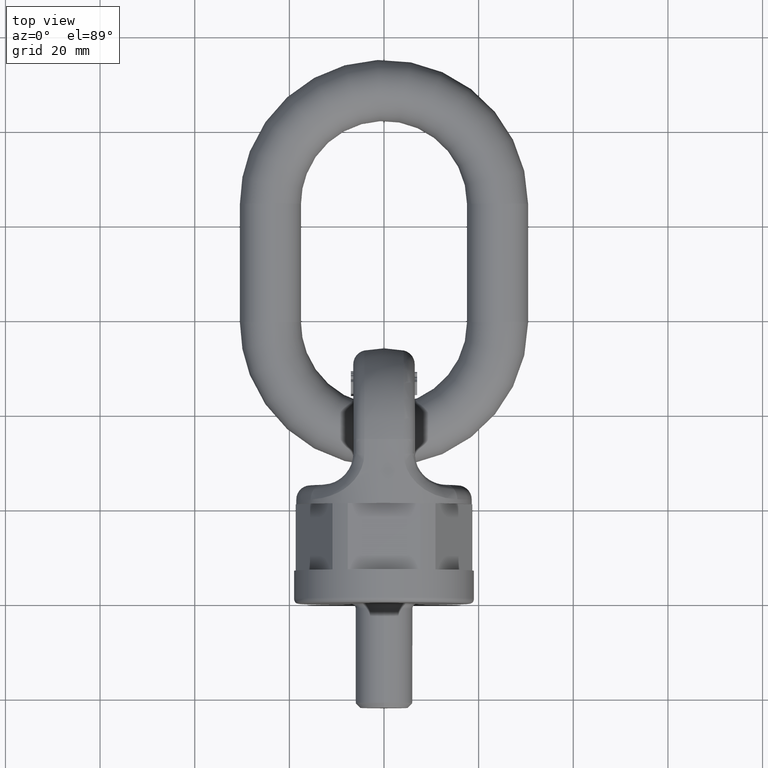
[diagram: clean part render]
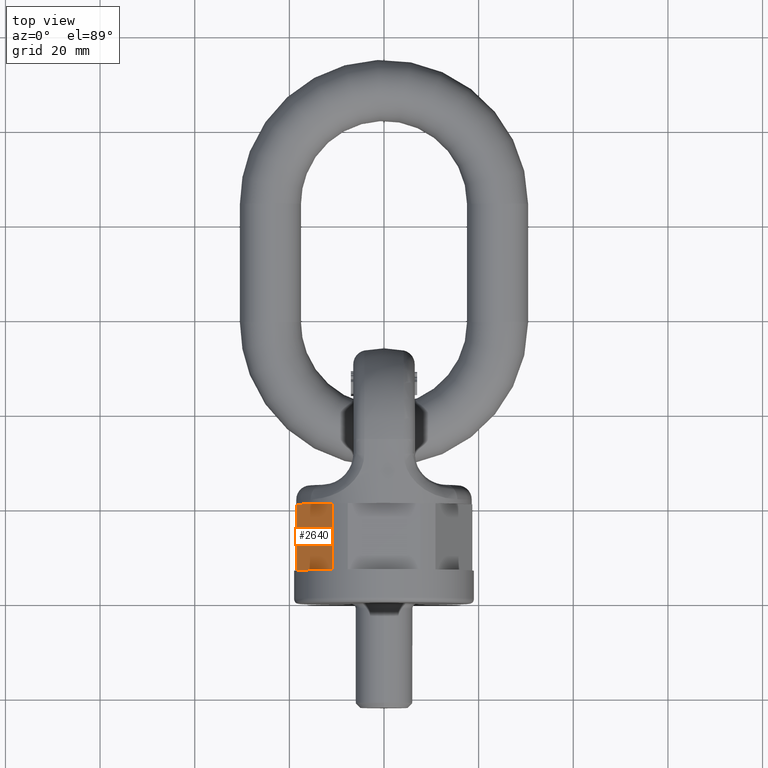
[diagram: same view with one face highlighted and labeled with its STEP entity id]
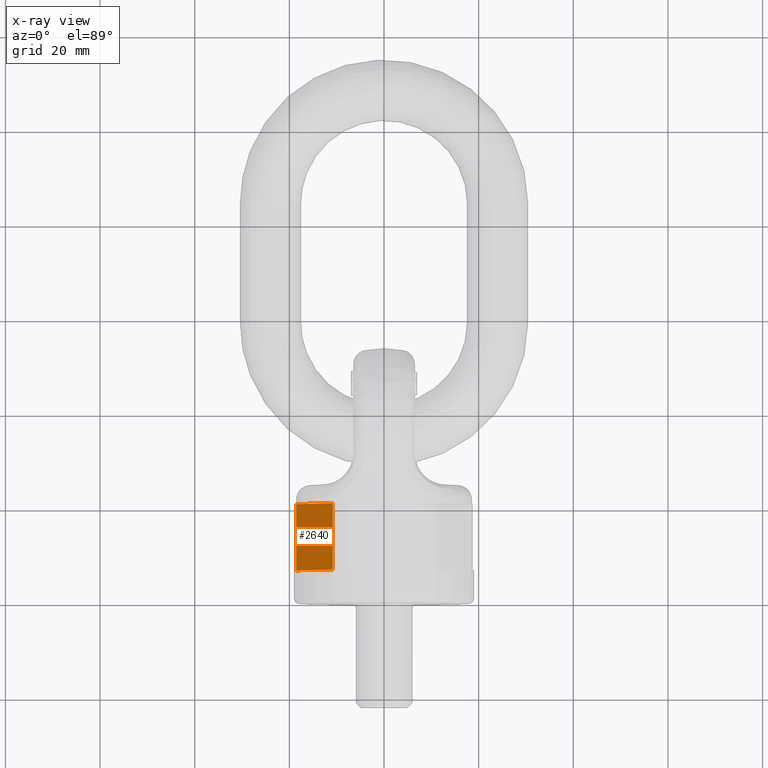
[diagram: x-ray of the same camera — body ghosted, the highlighted face saturated]
A machine part, top view. The second image highlights one B-rep face of the part: STEP entity #2640.
The next image is the same camera in x-ray: the body ghosted, the highlighted face saturated — about 0% of this face is hidden behind the body in this view.
In plain terms, the highlighted planar face has unit normal (-0.866, 0, 0.5).
Its self-contained STEP definition (entity closure, byte-faithful):
#1798=FACE_OUTER_BOUND('',#3063,.T.);
#2035=LINE('',#6578,#2291);
#2039=LINE('',#6597,#2295);
#2040=LINE('',#6599,#2296);
#2041=LINE('',#6601,#2297);
#2291=VECTOR('',#5817,1.);
#2295=VECTOR('',#5835,1.);
#2296=VECTOR('',#5836,1.);
#2297=VECTOR('',#5837,1.);
#2640=ADVANCED_FACE('',(#1798),#2882,.T.);
#2882=PLANE('',#5609);
#3063=EDGE_LOOP('',(#3360,#3361,#3362,#3363));
#3360=ORIENTED_EDGE('',*,*,#4949,.F.);
#3361=ORIENTED_EDGE('',*,*,#4940,.T.);
#3362=ORIENTED_EDGE('',*,*,#4950,.F.);
#3363=ORIENTED_EDGE('',*,*,#4951,.T.);
#4542=VERTEX_POINT('',#6577);
#4543=VERTEX_POINT('',#6579);
#4551=VERTEX_POINT('',#6598);
#4552=VERTEX_POINT('',#6600);
#4940=EDGE_CURVE('',#4543,#4542,#2035,.T.);
#4949=EDGE_CURVE('',#4543,#4551,#2039,.T.);
#4950=EDGE_CURVE('',#4552,#4542,#2040,.T.);
#4951=EDGE_CURVE('',#4552,#4551,#2041,.T.);
#5609=AXIS2_PLACEMENT_3D('',#6602,#5838,#5839);
#5817=DIRECTION('',(0.499999999999999,1.91351062366774E-17,0.866025403784439));
#5835=DIRECTION('',(-2.4492935982947E-17,1.,0.));
#5836=DIRECTION('',(2.4492935982947E-17,-1.,0.));
#5837=DIRECTION('',(-0.499999999999999,0.,-0.866025403784439));
#5838=DIRECTION('',(-0.866025403784439,0.,0.499999999999999));
#5839=DIRECTION('',(0.499999999999999,0.,0.866025403784439));
#6577=CARTESIAN_POINT('',(-10.8895695744386,7.,15.1387122245161));
#6578=CARTESIAN_POINT('',(-9.97243186433546,7.,16.7272413359521));
#6579=CARTESIAN_POINT('',(-18.5552941542323,7.,1.86128777548383));
#6597=CARTESIAN_POINT('',(-18.5552941542323,-9.38780506978953E-17,1.86128777548383));
#6598=CARTESIAN_POINT('',(-18.5552941542323,21.,1.86128777548384));
#6599=CARTESIAN_POINT('',(-10.8895695744386,9.38780506978953E-17,15.1387122245161));
#6600=CARTESIAN_POINT('',(-10.8895695744386,21.,15.1387122245161));
#6601=CARTESIAN_POINT('',(-9.81495457622363,21.,17.));
#6602=CARTESIAN_POINT('',(-9.81495457622363,21.,17.));